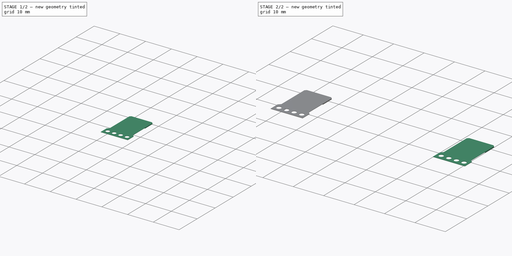
[diagram: build sequence overview — one tinted view per stage of 2, left to right]
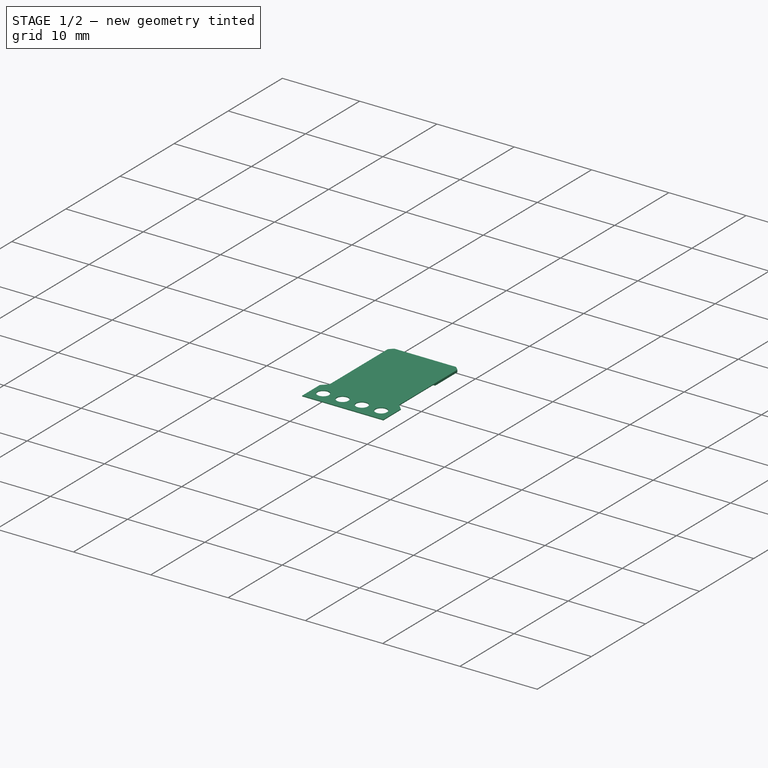
[diagram: stage 1 of 2 — iso view after this stage's code; geometry added in this stage tinted green]
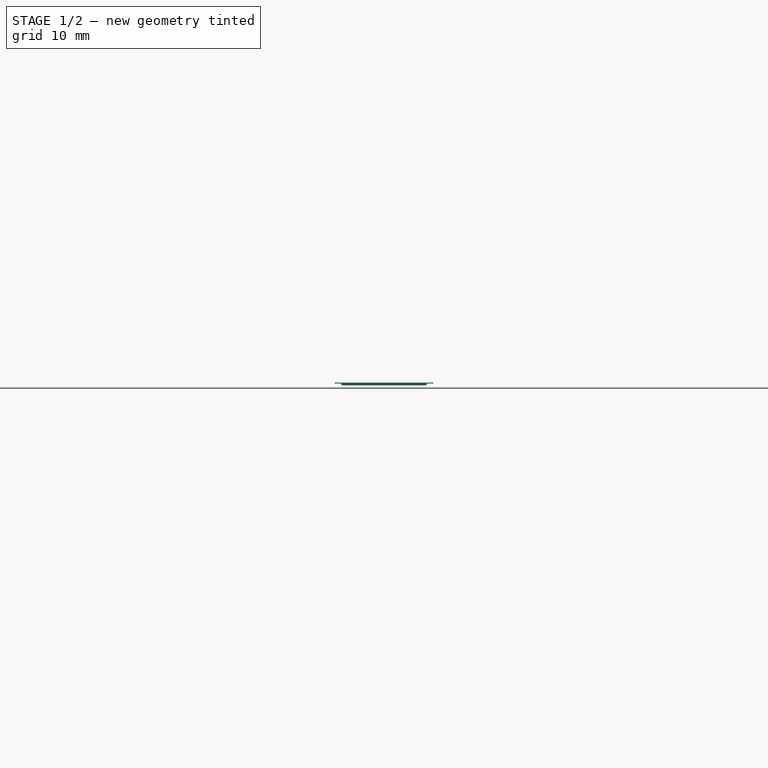
[diagram: stage 1 of 2 — front view after this stage's code; geometry added in this stage tinted green]
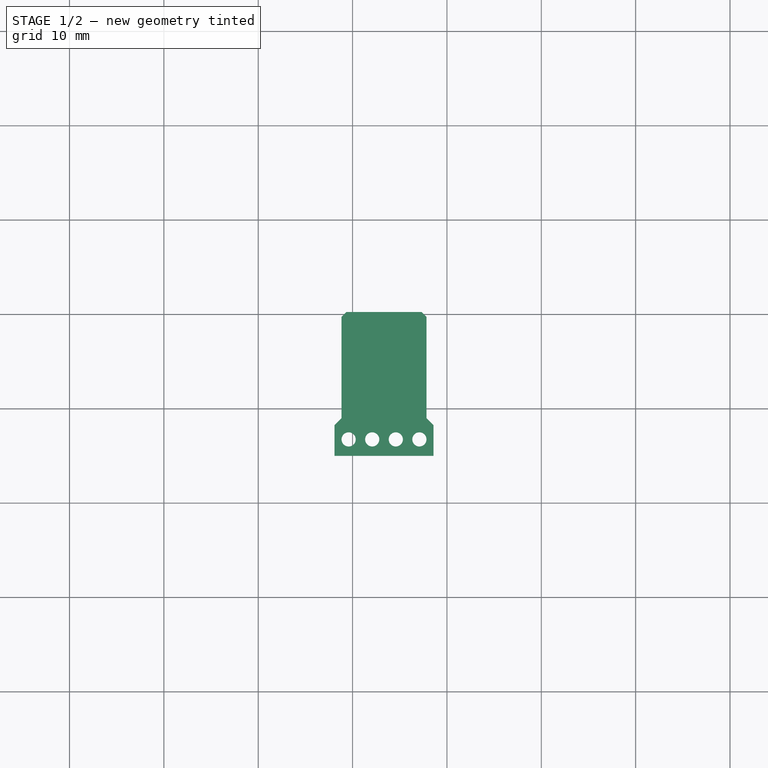
[diagram: stage 1 of 2 — top view after this stage's code; geometry added in this stage tinted green]
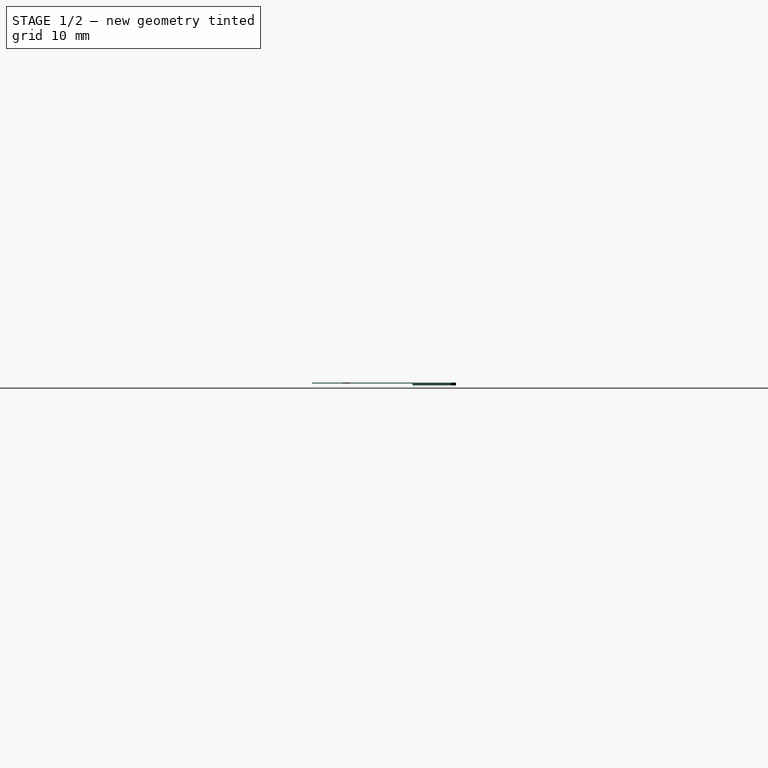
[diagram: stage 1 of 2 — right view after this stage's code; geometry added in this stage tinted green]
FCSTD DOCUMENT  (FreeCAD 0.18R15969 (Git))
Label: feature_ffc_cutout
License: All rights reserved
LicenseURL: http://en.wikipedia.org/wiki/All_rights_reserved
objects: Sketcher::SketchObject×4, PartDesign::Pad×4, PartDesign::Body×2
note: 14 computed .brp shape members not serialized (recipe doc carries the construction recipe); baked Part::Feature solids carry a one-line shape summary decoded from their .brp

FEATURE [PartDesign::Body] Body  label="feature_ffc_cutout_A"
  Group = -> [Sketch,Pad,Sketch001,Pad001]
  Origin = -> Origin
  Tip = -> Pad001
FEATURE [Sketcher::SketchObject] Sketch002
  MapMode = 5
  Support = -> [XY_Plane001]
  sketch-geometry (21):
    g0: LineSegment StartX=-31.17 StartY=-1 StartZ=0 EndX=-31.17 EndY=9.75 EndZ=0
    g1: LineSegment StartX=-31.17 StartY=9.75 StartZ=0 EndX=-30.67 EndY=10.25 EndZ=0
    g2: LineSegment StartX=-30.67 StartY=10.25 StartZ=0 EndX=-22.67 EndY=10.25 EndZ=0
    g3: LineSegment StartX=-22.67 StartY=10.25 StartZ=0 EndX=-22.17 EndY=9.75 EndZ=0
    g4: LineSegment StartX=-22.17 StartY=9.75 StartZ=0 EndX=-22.17 EndY=-1 EndZ=0
    g5: LineSegment StartX=-22.17 StartY=-1 StartZ=0 EndX=-21.42 EndY=-1.75 EndZ=0
    g6: LineSegment StartX=-21.42 StartY=-1.75 StartZ=0 EndX=-21.42 EndY=-5 EndZ=0
    g7: LineSegment StartX=-21.42 StartY=-5 StartZ=0 EndX=-31.92 EndY=-5 EndZ=0
    g8: LineSegment StartX=-31.92 StartY=-5 StartZ=0 EndX=-31.92 EndY=-1.75 EndZ=0
    g9: LineSegment StartX=-31.92 StartY=-1.75 StartZ=0 EndX=-31.17 EndY=-1 EndZ=0
    g10: LineSegment [constr] StartX=-30.67 StartY=10.25 StartZ=0 EndX=-26.67 EndY=0 EndZ=0
    g11: LineSegment [constr] StartX=-26.67 StartY=0 StartZ=0 EndX=-22.67 EndY=10.25 EndZ=0
    g12: Circle CenterX=-30.42 CenterY=-3.25 CenterZ=0 NormalX=0 NormalY=0 NormalZ=1 AngleXU=0 Radius=0.75
    g13: Circle CenterX=-27.92 CenterY=-3.25 CenterZ=0 NormalX=0 NormalY=0 NormalZ=1 AngleXU=0 Radius=0.75
    g14: Circle CenterX=-25.42 CenterY=-3.25 CenterZ=0 NormalX=0 NormalY=0 NormalZ=1 AngleXU=0 Radius=0.75
    g15: Circle CenterX=-22.92 CenterY=-3.25 CenterZ=0 NormalX=0 NormalY=0 NormalZ=1 AngleXU=0 Radius=0.75
    g16: LineSegment [constr] StartX=-30.42 StartY=-3.25 StartZ=0 EndX=-27.92 EndY=-3.25 EndZ=0
    g17: LineSegment [constr] StartX=-27.92 StartY=-3.25 StartZ=0 EndX=-25.42 EndY=-3.25 EndZ=0
    g18: LineSegment [constr] StartX=-25.42 StartY=-3.25 StartZ=0 EndX=-22.92 EndY=-3.25 EndZ=0
    g19: LineSegment [constr] StartX=-27.92 StartY=-3.25 StartZ=0 EndX=-26.67 EndY=0 EndZ=0
    g20: LineSegment [constr] StartX=-26.67 StartY=0 StartZ=0 EndX=-25.42 EndY=-3.25 EndZ=0
  constraints (57):
    c: Vertical(g0)
    c: Coincident(g0,g1)
    c: Coincident(g1,g2)
    c: Horizontal(g2)
    c: Coincident(g2,g3)
    c: Coincident(g3,g4)
    c: Vertical(g4)
    c: Coincident(g4,g5)
    c: Coincident(g5,g6)
    c: Vertical(g6)
    c: Coincident(g6,g7)
    c: Horizontal(g7)
    c: Coincident(g7,g8)
    c: Vertical(g8)
    c: Coincident(g8,g9)
    c: Coincident(g9,g0)
    c: Angle(g1,g2) = 2.35619
    c: Parallel(g1,g9)
    c: Parallel(g3,g5)
    c: Perpendicular(g1,g3)
    c: Equal(g4,g0)
    c: Equal(g1,g3)
    c: Equal(g9,g5)
    c: Coincident(g1,g10)
    c: PointOnObject(g10,g-1)
    c: Coincident(g10,g11)
    c: Coincident(g11,g2)
    c: Equal(g10,g11)
    c: DistanceY(g10,g1) = 10.25
    c: DistanceX(g0,g3) = 9
    c: DistanceY(g7,g10) = 5
    c: DistanceX(g7,g7) = 10.5
    c: DistanceY(g8,g8) = 3.25
    c: DistanceX(g2,g2) = 8
    c: Coincident(g16,g12)
    c: Coincident(g16,g13)
    c: Coincident(g16,g17)
    c: Coincident(g17,g14)
    c: Coincident(g17,g18)
    c: Coincident(g18,g15)
    c: Horizontal(g18)
    c: Horizontal(g17)
    c: Horizontal(g16)
    c: Equal(g16,g17)
    c: Equal(g17,g18)
    c: Coincident(g19,g13)
    c: Coincident(g19,g10)
    c: Coincident(g19,g20)
    c: Coincident(g20,g14)
    c: Equal(g20,g19)
    c: DistanceX(g16,g16) = 2.5
    c: Diameter(g12) = 1.5
    c: DistanceY(g12,g10) = 3.25
    c: DistanceX(g10,g-1) = 26.67
    c: Equal(g12,g13)
    c: Equal(g13,g14)
    c: Equal(g14,g15)
FEATURE [PartDesign::Pad] Pad002
  Length = 0.1
  Length2 = 100
  Profile = -> Sketch002
  Reversed = true
  Type = 0
FEATURE [Sketcher::SketchObject] Sketch003
  ExternalGeometry = -> [Pad002]
  MapMode = 5
  Placement = pos=(0,0,-0.1) rot=(1,0,0;3.14159rad)
  Support = -> [Pad002]
  sketch-geometry (6):
    g0: LineSegment StartX=-31.17 StartY=-9.75 StartZ=0 EndX=-31.17 EndY=-5.65 EndZ=0
    g1: LineSegment StartX=-31.17 StartY=-5.65 StartZ=0 EndX=-22.17 EndY=-5.65 EndZ=0
    g2: LineSegment StartX=-22.17 StartY=-5.65 StartZ=0 EndX=-22.17 EndY=-9.75 EndZ=0
    g3: LineSegment StartX=-22.17 StartY=-9.75 StartZ=0 EndX=-22.67 EndY=-10.25 EndZ=0
    g4: LineSegment StartX=-22.67 StartY=-10.25 StartZ=0 EndX=-30.67 EndY=-10.25 EndZ=0
    g5: LineSegment StartX=-30.67 StartY=-10.25 StartZ=0 EndX=-31.17 EndY=-9.75 EndZ=0
  constraints (14):
    c: Coincident(g-4,g0)
    c: Vertical(g0)
    c: Coincident(g0,g1)
    c: Horizontal(g1)
    c: Coincident(g1,g2)
    c: Coincident(g2,g-5)
    c: Vertical(g2)
    c: Coincident(g2,g3)
    c: Coincident(g3,g-5)
    c: Coincident(g3,g4)
    c: Coincident(g4,g-4)
    c: Coincident(g4,g5)
    c: Coincident(g5,g0)
    c: DistanceY(g4,g0) = 4.6
FEATURE [PartDesign::Pad] Pad003
  BaseFeature = -> Pad002
  Length = 0.2
  Length2 = 100
  Profile = -> Sketch003
  Refine = true
  Type = 0
FEATURE [PartDesign::Body] Body001  label="feature_ffc_cutout_B"
  Group = -> [Sketch002,Pad002,Sketch003,Pad003]
  Origin = -> Origin001
  Tip = -> Pad003
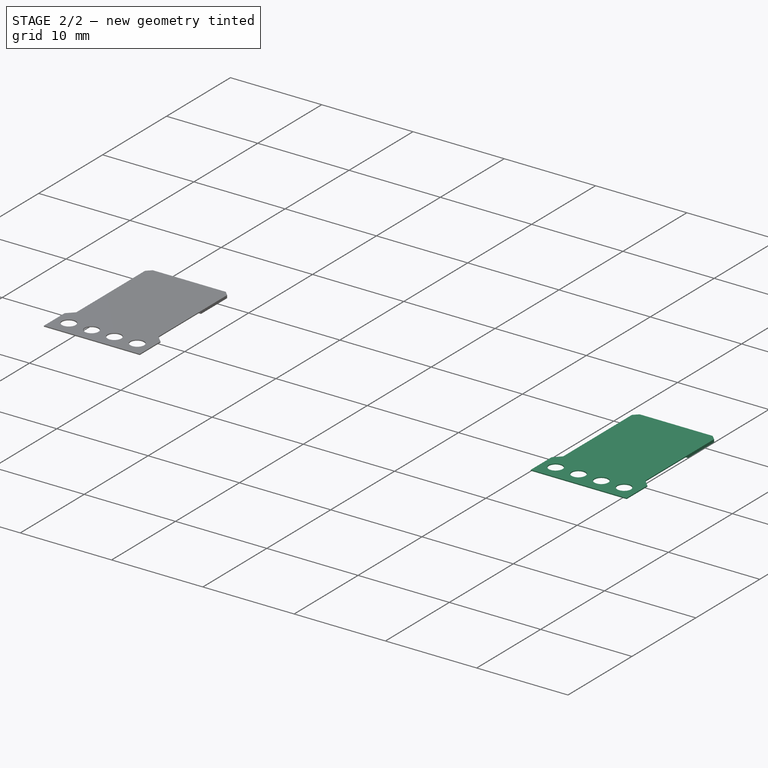
[diagram: stage 2 of 2 — iso view after this stage's code; geometry added in this stage tinted green]
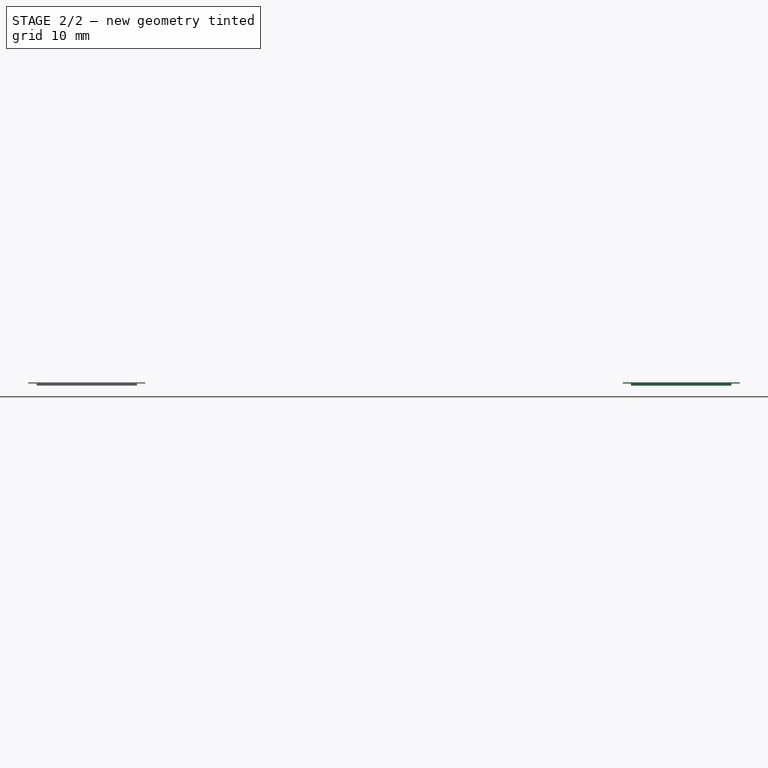
[diagram: stage 2 of 2 — front view after this stage's code; geometry added in this stage tinted green]
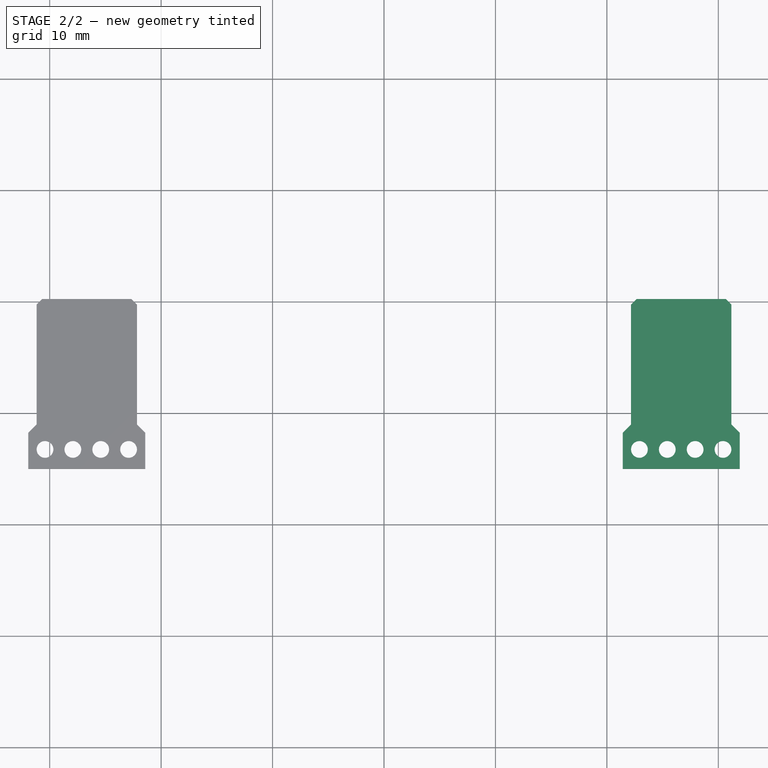
[diagram: stage 2 of 2 — top view after this stage's code; geometry added in this stage tinted green]
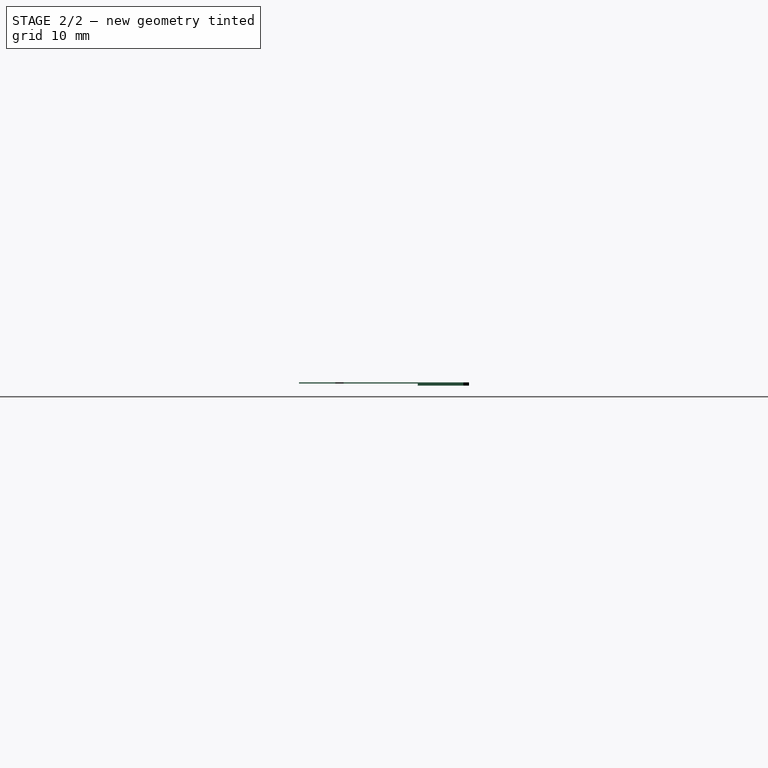
[diagram: stage 2 of 2 — right view after this stage's code; geometry added in this stage tinted green]
FEATURE [Sketcher::SketchObject] Sketch
  MapMode = 5
  Support = -> [XY_Plane]
  sketch-geometry (21):
    g0: LineSegment StartX=22.17 StartY=-1 StartZ=0 EndX=22.17 EndY=9.75 EndZ=0
    g1: LineSegment StartX=22.17 StartY=9.75 StartZ=0 EndX=22.67 EndY=10.25 EndZ=0
    g2: LineSegment StartX=22.67 StartY=10.25 StartZ=0 EndX=30.67 EndY=10.25 EndZ=0
    g3: LineSegment StartX=30.67 StartY=10.25 StartZ=0 EndX=31.17 EndY=9.75 EndZ=0
    g4: LineSegment StartX=31.17 StartY=9.75 StartZ=0 EndX=31.17 EndY=-1 EndZ=0
    g5: LineSegment StartX=31.17 StartY=-1 StartZ=0 EndX=31.92 EndY=-1.75 EndZ=0
    g6: LineSegment StartX=31.92 StartY=-1.75 StartZ=0 EndX=31.92 EndY=-5 EndZ=0
    g7: LineSegment StartX=31.92 StartY=-5 StartZ=0 EndX=21.42 EndY=-5 EndZ=0
    g8: LineSegment StartX=21.42 StartY=-5 StartZ=0 EndX=21.42 EndY=-1.75 EndZ=0
    g9: LineSegment StartX=21.42 StartY=-1.75 StartZ=0 EndX=22.17 EndY=-1 EndZ=0
    g10: LineSegment [constr] StartX=22.67 StartY=10.25 StartZ=0 EndX=26.67 EndY=0 EndZ=0
    g11: LineSegment [constr] StartX=26.67 StartY=0 StartZ=0 EndX=30.67 EndY=10.25 EndZ=0
    g12: Circle CenterX=22.92 CenterY=-3.25 CenterZ=0 NormalX=0 NormalY=0 NormalZ=1 AngleXU=0 Radius=0.75
    g13: Circle CenterX=25.42 CenterY=-3.25 CenterZ=0 NormalX=0 NormalY=0 NormalZ=1 AngleXU=0 Radius=0.75
    g14: Circle CenterX=27.92 CenterY=-3.25 CenterZ=0 NormalX=0 NormalY=0 NormalZ=1 AngleXU=0 Radius=0.75
    g15: Circle CenterX=30.42 CenterY=-3.25 CenterZ=0 NormalX=0 NormalY=0 NormalZ=1 AngleXU=0 Radius=0.75
    g16: LineSegment [constr] StartX=22.92 StartY=-3.25 StartZ=0 EndX=25.42 EndY=-3.25 EndZ=0
    g17: LineSegment [constr] StartX=25.42 StartY=-3.25 StartZ=0 EndX=27.92 EndY=-3.25 EndZ=0
    g18: LineSegment [constr] StartX=27.92 StartY=-3.25 StartZ=0 EndX=30.42 EndY=-3.25 EndZ=0
    g19: LineSegment [constr] StartX=25.42 StartY=-3.25 StartZ=0 EndX=26.67 EndY=0 EndZ=0
    g20: LineSegment [constr] StartX=26.67 StartY=0 StartZ=0 EndX=27.92 EndY=-3.25 EndZ=0
  constraints (57):
    c: Vertical(g0)
    c: Coincident(g0,g1)
    c: Coincident(g1,g2)
    c: Horizontal(g2)
    c: Coincident(g2,g3)
    c: Coincident(g3,g4)
    c: Vertical(g4)
    c: Coincident(g4,g5)
    c: Coincident(g5,g6)
    c: Vertical(g6)
    c: Coincident(g6,g7)
    c: Horizontal(g7)
    c: Coincident(g7,g8)
    c: Vertical(g8)
    c: Coincident(g8,g9)
    c: Coincident(g9,g0)
    c: Angle(g1,g2) = 2.35619
    c: Parallel(g1,g9)
    c: Parallel(g3,g5)
    c: Perpendicular(g1,g3)
    c: Equal(g4,g0)
    c: Equal(g1,g3)
    c: Equal(g9,g5)
    c: Coincident(g1,g10)
    c: PointOnObject(g10,g-1)
    c: Coincident(g10,g11)
    c: Coincident(g11,g2)
    c: DistanceX(g-1,g10) = 26.67
    c: Equal(g10,g11)
    c: DistanceY(g10,g1) = 10.25
    c: DistanceX(g0,g3) = 9
    c: DistanceY(g7,g10) = 5
    c: DistanceX(g7,g7) = 10.5
    c: DistanceY(g8,g8) = 3.25
    c: DistanceX(g2,g2) = 8
    c: Coincident(g16,g12)
    c: Coincident(g16,g13)
    c: Coincident(g16,g17)
    c: Coincident(g17,g14)
    c: Coincident(g17,g18)
    c: Coincident(g18,g15)
    c: Horizontal(g18)
    c: Horizontal(g17)
    c: Horizontal(g16)
    c: Equal(g16,g17)
    c: Equal(g17,g18)
    c: Coincident(g19,g13)
    c: Coincident(g19,g10)
    c: Coincident(g19,g20)
    c: Coincident(g20,g14)
    c: Equal(g20,g19)
    c: DistanceX(g16,g16) = 2.5
    c: Diameter(g12) = 1.5
    c: DistanceY(g12,g10) = 3.25
    c: Equal(g13,g14)
    c: Equal(g14,g15)
    c: Equal(g15,g12)
FEATURE [PartDesign::Pad] Pad
  Length = 0.1
  Length2 = 100
  Profile = -> Sketch
  Reversed = true
  Type = 0
FEATURE [Sketcher::SketchObject] Sketch001
  ExternalGeometry = -> [Pad]
  MapMode = 5
  Placement = pos=(0,0,-0.1) rot=(1,0,0;3.14159rad)
  Support = -> [Pad]
  sketch-geometry (6):
    g0: LineSegment StartX=22.17 StartY=-9.75 StartZ=0 EndX=22.17 EndY=-5.65 EndZ=0
    g1: LineSegment StartX=22.17 StartY=-5.65 StartZ=0 EndX=31.17 EndY=-5.65 EndZ=0
    g2: LineSegment StartX=31.17 StartY=-5.65 StartZ=0 EndX=31.17 EndY=-9.75 EndZ=0
    g3: LineSegment StartX=31.17 StartY=-9.75 StartZ=0 EndX=30.67 EndY=-10.25 EndZ=0
    g4: LineSegment StartX=30.67 StartY=-10.25 StartZ=0 EndX=22.67 EndY=-10.25 EndZ=0
    g5: LineSegment StartX=22.67 StartY=-10.25 StartZ=0 EndX=22.17 EndY=-9.75 EndZ=0
  constraints (14):
    c: Coincident(g-4,g0)
    c: Vertical(g0)
    c: Coincident(g0,g1)
    c: Horizontal(g1)
    c: Coincident(g1,g2)
    c: Coincident(g2,g-5)
    c: Vertical(g2)
    c: Coincident(g2,g3)
    c: Coincident(g3,g-5)
    c: Coincident(g3,g4)
    c: Coincident(g4,g-4)
    c: Coincident(g4,g5)
    c: Coincident(g5,g0)
    c: DistanceY(g4,g0) = 4.6
FEATURE [PartDesign::Pad] Pad001
  BaseFeature = -> Pad
  Length = 0.2
  Length2 = 100
  Profile = -> Sketch001
  Refine = true
  Type = 0
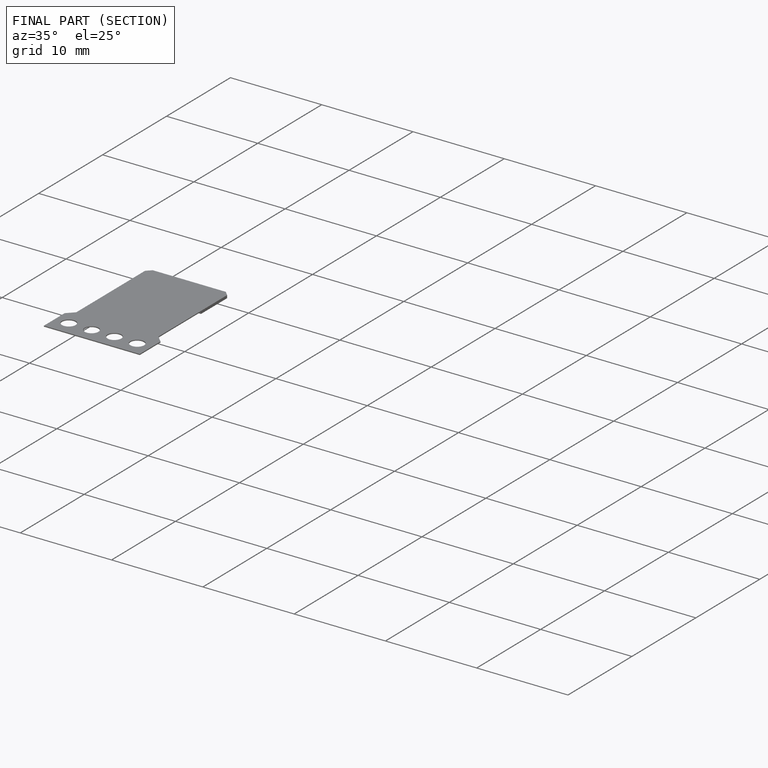
[diagram: finished part — half-section view (interior)]
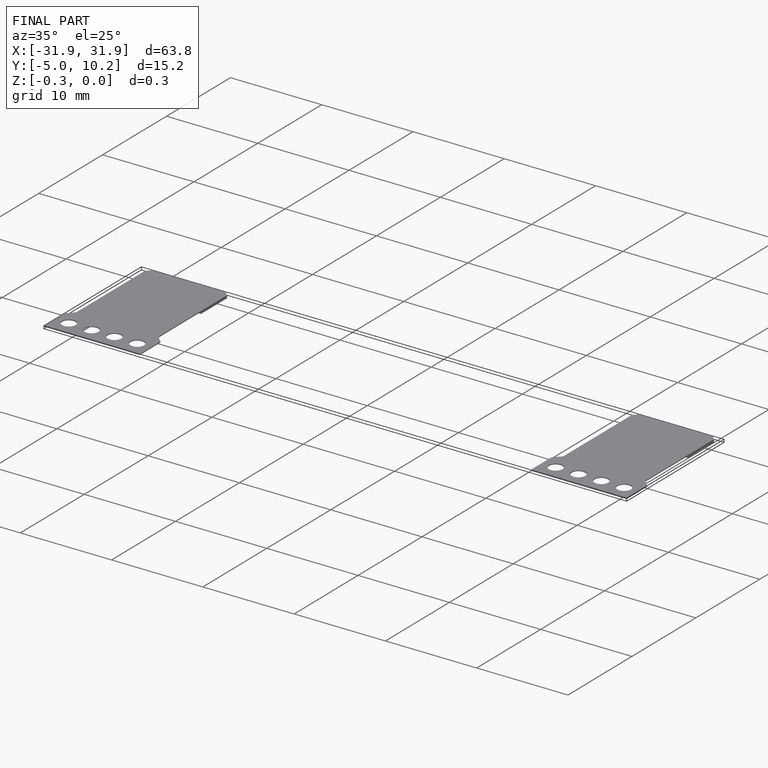
[diagram: finished part — iso view with bounding-box wireframe]
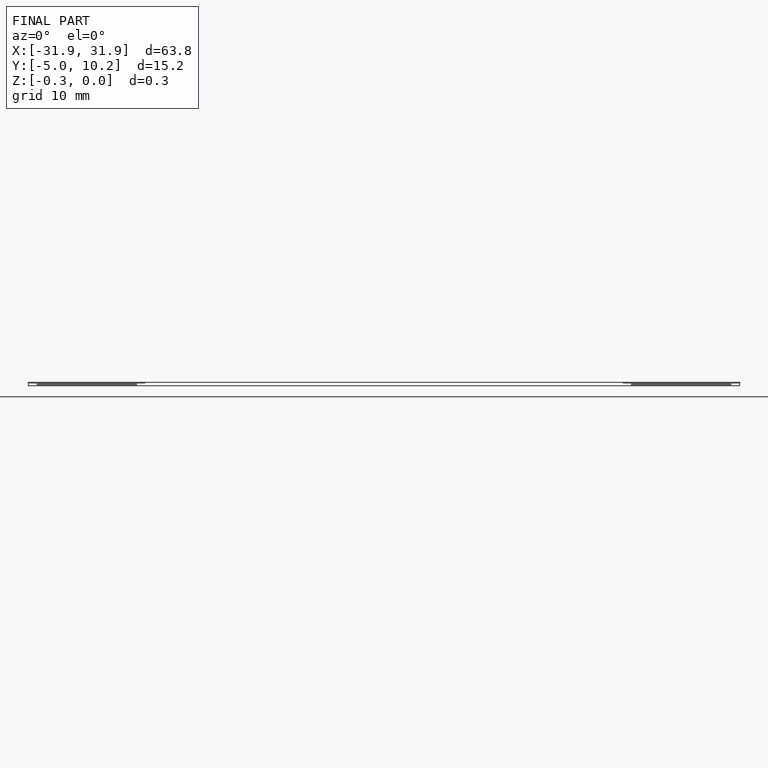
[diagram: finished part — front view with bounding-box wireframe]
